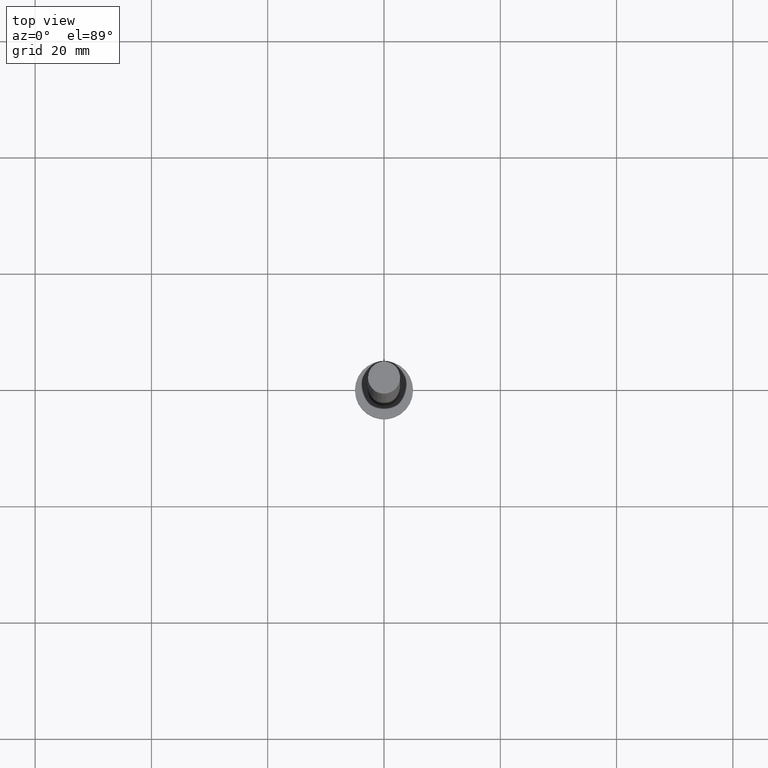
[diagram: clean part render]
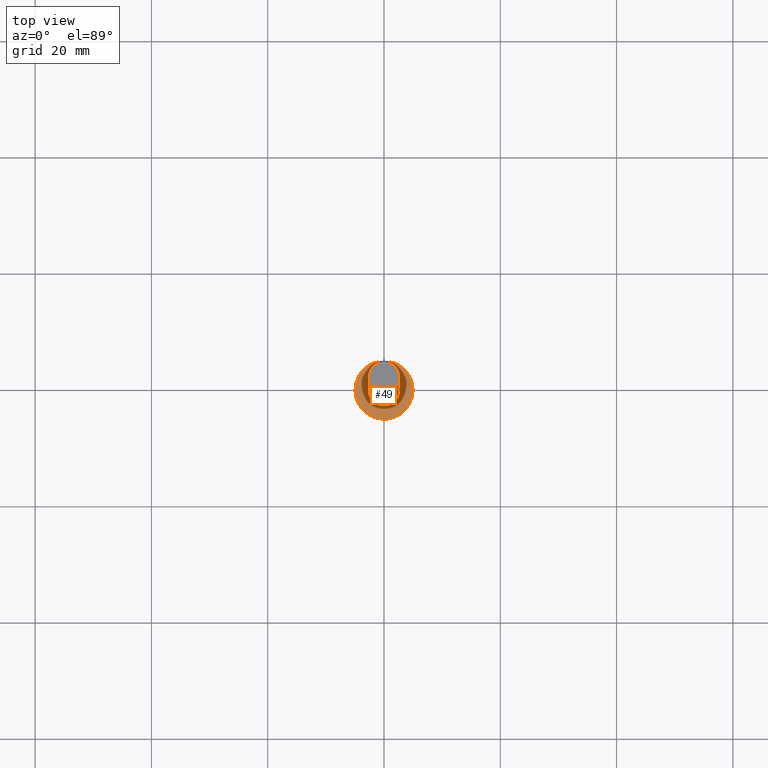
[diagram: same view with one face highlighted and labeled with its STEP entity id]
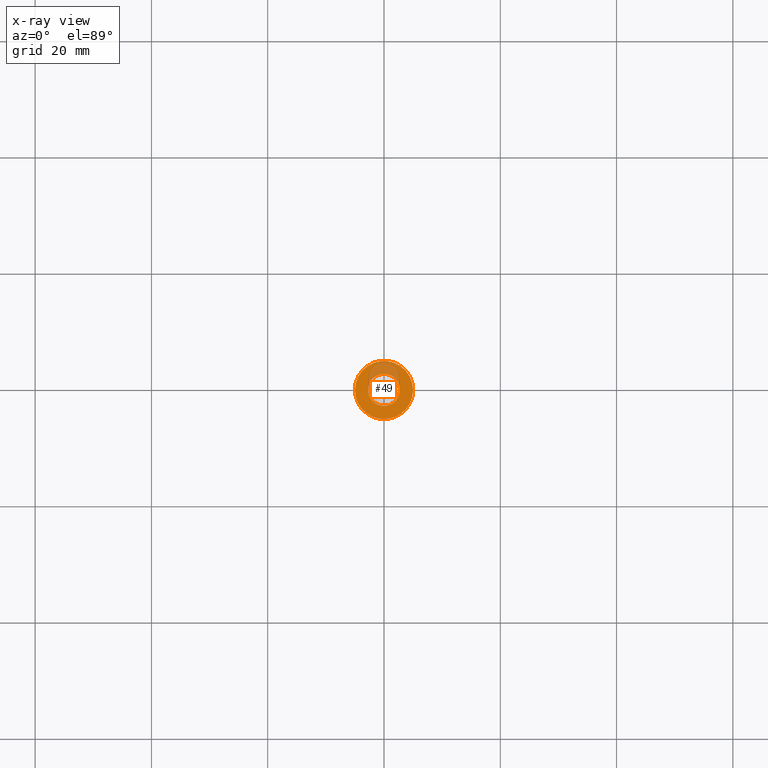
[diagram: x-ray of the same camera — body ghosted, the highlighted face saturated]
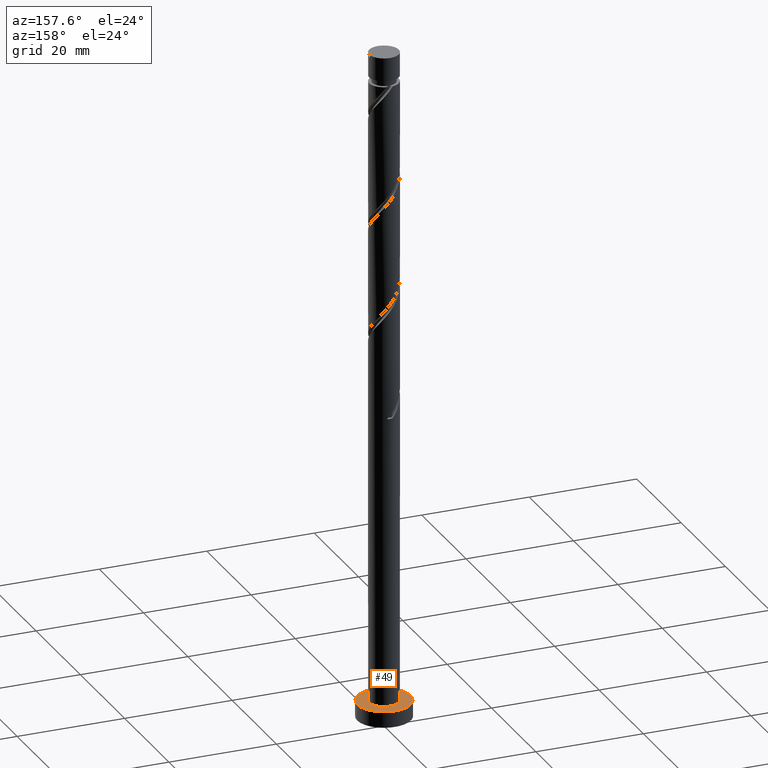
[diagram: same view with one face highlighted and labeled with its STEP entity id]
A machine part, top view. The second image highlights one B-rep face of the part: STEP entity #49.
The next image is the same camera in x-ray: the body ghosted, the highlighted face saturated — about 22% of this face is hidden behind the body in this view.
A second angle (auxiliary view) of the same face is appended — the face is thin or edge-on in the first view.
In plain terms, the highlighted planar face has unit normal (0, 0, 1).
Its self-contained STEP definition (entity closure, byte-faithful):
#49 = ADVANCED_FACE ( 'NONE', ( #1432, #75 ), #68, .T. ) ;
#66 = CARTESIAN_POINT ( 'NONE',  ( 2.750000000000000000, 3.367778697655220519E-16, 3.000000000000000000 ) ) ;
#68 = PLANE ( 'NONE',  #363 ) ;
#75 = FACE_OUTER_BOUND ( 'NONE', #1282, .T. ) ;
#81 = CARTESIAN_POINT ( 'NONE',  ( 5.000000000000000000, 6.123233995736766282E-16, 3.000000000000000000 ) ) ;
#83 = ORIENTED_EDGE ( 'NONE', *, *, #383, .F. ) ;
#91 = DIRECTION ( 'NONE',  ( 1.000000000000000000, 0.000000000000000000, 0.000000000000000000 ) ) ;
#116 = EDGE_CURVE ( 'NONE', #1381, #671, #1551, .T. ) ;
#170 = VERTEX_POINT ( 'NONE', #488 ) ;
#178 = DIRECTION ( 'NONE',  ( 0.000000000000000000, 0.000000000000000000, 1.000000000000000000 ) ) ;
#184 = CARTESIAN_POINT ( 'NONE',  ( 0.000000000000000000, 0.000000000000000000, 3.000000000000000000 ) ) ;
#306 = AXIS2_PLACEMENT_3D ( 'NONE', #184, #178, #1181 ) ;
#330 = DIRECTION ( 'NONE',  ( 0.000000000000000000, 0.000000000000000000, 1.000000000000000000 ) ) ;
#331 = AXIS2_PLACEMENT_3D ( 'NONE', #745, #499, #981 ) ;
#363 = AXIS2_PLACEMENT_3D ( 'NONE', #450, #558, #573 ) ;
#383 = EDGE_CURVE ( 'NONE', #170, #532, #768, .T. ) ;
#450 = CARTESIAN_POINT ( 'NONE',  ( 0.000000000000000000, 0.000000000000000000, 3.000000000000000000 ) ) ;
#488 = CARTESIAN_POINT ( 'NONE',  ( -2.750000000000000000, 0.000000000000000000, 3.000000000000000000 ) ) ;
#493 = AXIS2_PLACEMENT_3D ( 'NONE', #1439, #1221, #836 ) ;
#499 = DIRECTION ( 'NONE',  ( 0.000000000000000000, 0.000000000000000000, 1.000000000000000000 ) ) ;
#532 = VERTEX_POINT ( 'NONE', #66 ) ;
#558 = DIRECTION ( 'NONE',  ( 0.000000000000000000, 0.000000000000000000, 1.000000000000000000 ) ) ;
#573 = DIRECTION ( 'NONE',  ( 1.000000000000000000, 0.000000000000000000, -0.000000000000000000 ) ) ;
#630 = EDGE_LOOP ( 'NONE', ( #83, #1220 ) ) ;
#671 = VERTEX_POINT ( 'NONE', #81 ) ;
#726 = EDGE_CURVE ( 'NONE', #532, #170, #1324, .T. ) ;
#745 = CARTESIAN_POINT ( 'NONE',  ( 0.000000000000000000, 0.000000000000000000, 3.000000000000000000 ) ) ;
#768 = CIRCLE ( 'NONE', #331, 2.750000000000000000 ) ;
#816 = CARTESIAN_POINT ( 'NONE',  ( 0.000000000000000000, 0.000000000000000000, 3.000000000000000000 ) ) ;
#836 = DIRECTION ( 'NONE',  ( 1.000000000000000000, 0.000000000000000000, 0.000000000000000000 ) ) ;
#860 = EDGE_CURVE ( 'NONE', #671, #1381, #995, .T. ) ;
#935 = CARTESIAN_POINT ( 'NONE',  ( -5.000000000000000000, 0.000000000000000000, 3.000000000000000000 ) ) ;
#981 = DIRECTION ( 'NONE',  ( 1.000000000000000000, 0.000000000000000000, 0.000000000000000000 ) ) ;
#995 = CIRCLE ( 'NONE', #306, 5.000000000000000000 ) ;
#1070 = AXIS2_PLACEMENT_3D ( 'NONE', #816, #330, #91 ) ;
#1176 = ORIENTED_EDGE ( 'NONE', *, *, #116, .T. ) ;
#1181 = DIRECTION ( 'NONE',  ( 1.000000000000000000, 0.000000000000000000, 0.000000000000000000 ) ) ;
#1220 = ORIENTED_EDGE ( 'NONE', *, *, #726, .F. ) ;
#1221 = DIRECTION ( 'NONE',  ( 0.000000000000000000, 0.000000000000000000, 1.000000000000000000 ) ) ;
#1270 = ORIENTED_EDGE ( 'NONE', *, *, #860, .T. ) ;
#1282 = EDGE_LOOP ( 'NONE', ( #1176, #1270 ) ) ;
#1324 = CIRCLE ( 'NONE', #493, 2.750000000000000000 ) ;
#1381 = VERTEX_POINT ( 'NONE', #935 ) ;
#1432 = FACE_BOUND ( 'NONE', #630, .T. ) ;
#1439 = CARTESIAN_POINT ( 'NONE',  ( 0.000000000000000000, 0.000000000000000000, 3.000000000000000000 ) ) ;
#1551 = CIRCLE ( 'NONE', #1070, 5.000000000000000000 ) ;